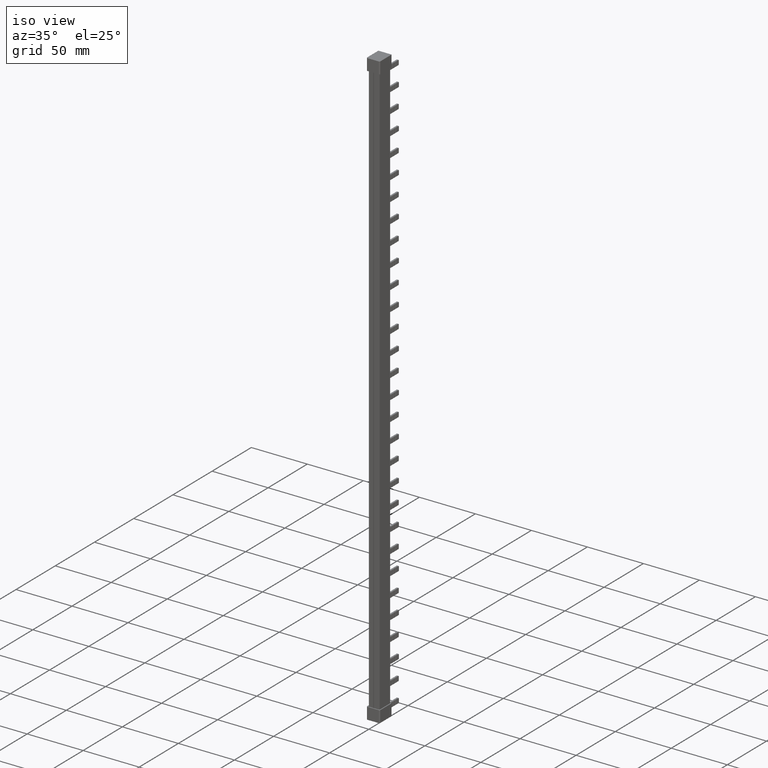
[diagram: clean part render]
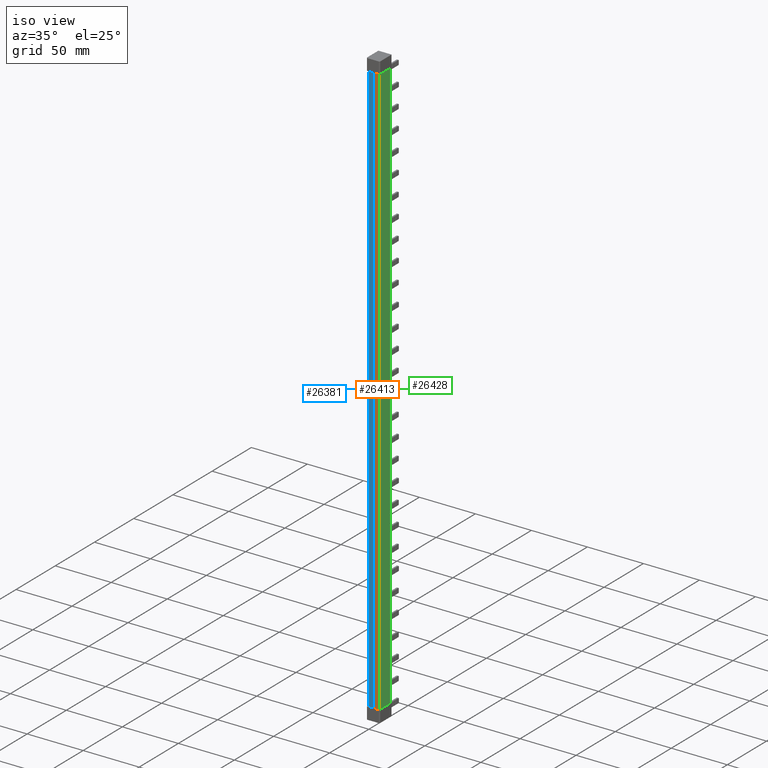
[diagram: same view with three faces highlighted in distinct colors, each labeled with its STEP entity id]
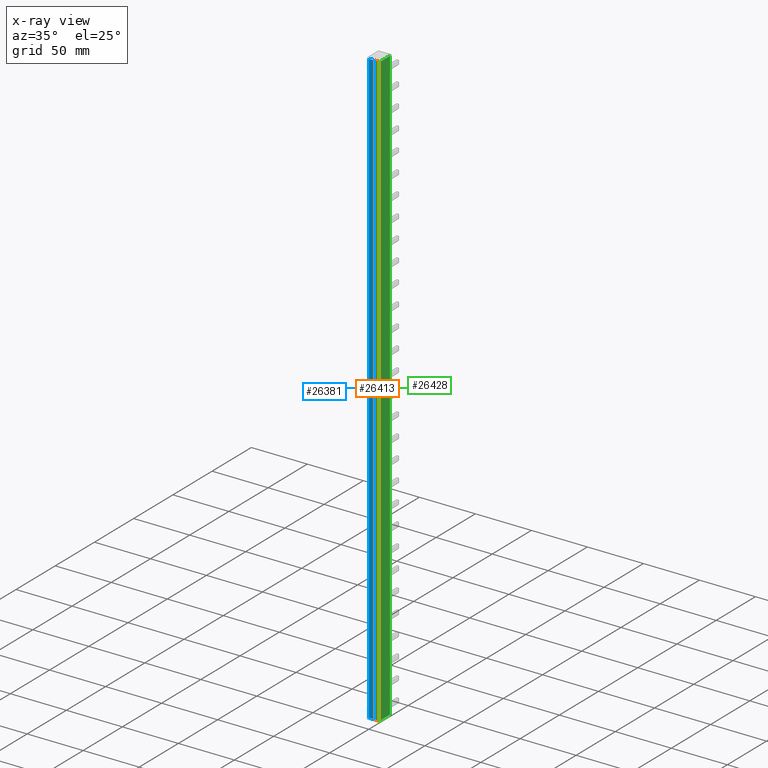
[diagram: x-ray of the same camera — body ghosted, the three highlighted faces saturated]
A machine part, iso view with three faces highlighted in distinct colors.
The next image is the same camera in x-ray (body ghosted, the three faces saturated) — at least one of them is partly hidden behind the body in this view.
Their STEP definitions:

[orange] entity #26413 — the highlighted planar face has unit normal (0, -1, 0).
#4315 = CARTESIAN_POINT ( 'NONE',  ( 8.900000000277932700, -5.421010862427522200E-017, 217.7999999999938400 ) ) ;
#4369 = DIRECTION ( 'NONE',  ( -1.000000000000000000, -0.0000000000000000000, 6.924738560343257600E-013 ) ) ;
#4406 = LINE ( 'NONE', #4315, #39072 ) ;
#5725 = EDGE_LOOP ( 'NONE', ( #30264, #30232, #30269, #30270, #30231, #30259 ) ) ;
#6493 = EDGE_CURVE ( 'NONE', #26765, #26800, #4406, .T. ) ;
#6574 = EDGE_CURVE ( 'NONE', #26796, #26765, #28655, .T. ) ;
#6591 = EDGE_CURVE ( 'NONE', #26823, #26810, #39503, .T. ) ;
#6604 = EDGE_CURVE ( 'NONE', #26810, #26831, #28645, .T. ) ;
#6655 = EDGE_CURVE ( 'NONE', #26831, #26796, #39757, .T. ) ;
#6680 = EDGE_CURVE ( 'NONE', #26800, #26823, #39857, .T. ) ;
#9617 = PLANE ( 'NONE',  #22924 ) ;
#9618 = CARTESIAN_POINT ( 'NONE',  ( 6.099999999999830900, 0.0000000000000000000, 220.2000000000000200 ) ) ;
#9647 = DIRECTION ( 'NONE',  ( 0.0000000000000000000, -0.0000000000000000000, -1.000000000000000000 ) ) ;
#9652 = FACE_OUTER_BOUND ( 'NONE', #5725, .T. ) ;
#9659 = DIRECTION ( 'NONE',  ( 0.0000000000000000000, -1.000000000000000000, 0.0000000000000000000 ) ) ;
#10403 = CARTESIAN_POINT ( 'NONE',  ( 9.592820323301547000, -2.710505431213761100E-017, 217.7999999999933600 ) ) ;
#10407 = CARTESIAN_POINT ( 'NONE',  ( 9.599999999999830900, -3.499844738719437500E-014, 217.7999030758346100 ) ) ;
#10414 = CARTESIAN_POINT ( 'NONE',  ( 5.599999999999383200, -1.807003620809174000E-017, 217.7999999999960900 ) ) ;
#10502 = CARTESIAN_POINT ( 'NONE',  ( 9.599999999999830900, -2.433850994417244300E-014, -313.7999030758379600 ) ) ;
#10519 = CARTESIAN_POINT ( 'NONE',  ( 9.592820322935621000, 1.897353801849632800E-016, -313.8000000000067200 ) ) ;
#10522 = CARTESIAN_POINT ( 'NONE',  ( 5.599999999999383200, 0.0000000000000000000, -313.8000000000039900 ) ) ;
#22924 = AXIS2_PLACEMENT_3D ( 'NONE', #9618, #9659, #9647 ) ;
#26413 = ADVANCED_FACE ( 'NONE', ( #9652 ), #9617, .T. ) ;
#26765 = VERTEX_POINT ( 'NONE', #10403 ) ;
#26796 = VERTEX_POINT ( 'NONE', #10407 ) ;
#26800 = VERTEX_POINT ( 'NONE', #10414 ) ;
#26810 = VERTEX_POINT ( 'NONE', #10519 ) ;
#26823 = VERTEX_POINT ( 'NONE', #10522 ) ;
#26831 = VERTEX_POINT ( 'NONE', #10502 ) ;
#28645 = B_SPLINE_CURVE_WITH_KNOTS ( 'NONE', 3,
 ( #39551, #39570, #39559, #39552 ),
 .UNSPECIFIED., .F., .F.,
 ( 4, 4 ),
 ( 1.387778780781445700E-017, 7.180331262596996200E-006 ),
 .UNSPECIFIED. ) ;
#28655 = B_SPLINE_CURVE_WITH_KNOTS ( 'NONE', 3,
 ( #39419, #39390, #39399, #39427 ),
 .UNSPECIFIED., .F., .F.,
 ( 4, 4 ),
 ( 8.153200337090993300E-017, 7.180330896664818300E-006 ),
 .UNSPECIFIED. ) ;
#30231 = ORIENTED_EDGE ( 'NONE', *, *, #6591, .T. ) ;
#30232 = ORIENTED_EDGE ( 'NONE', *, *, #6574, .T. ) ;
#30259 = ORIENTED_EDGE ( 'NONE', *, *, #6604, .T. ) ;
#30264 = ORIENTED_EDGE ( 'NONE', *, *, #6655, .T. ) ;
#30269 = ORIENTED_EDGE ( 'NONE', *, *, #6493, .T. ) ;
#30270 = ORIENTED_EDGE ( 'NONE', *, *, #6680, .T. ) ;
#38128 = VECTOR ( 'NONE', #39855, 1000.000000000000000 ) ;
#39072 = VECTOR ( 'NONE', #4369, 1000.000000000000000 ) ;
#39159 = VECTOR ( 'NONE', #39521, 1000.000000000000000 ) ;
#39213 = VECTOR ( 'NONE', #39767, 1000.000000000000000 ) ;
#39390 = CARTESIAN_POINT ( 'NONE',  ( 9.597607430918472500, 0.0000000000000000000, 217.7999677721822100 ) ) ;
#39399 = CARTESIAN_POINT ( 'NONE',  ( 9.595213766931163200, 0.0000000000000000000, 217.7999999999934500 ) ) ;
#39419 = CARTESIAN_POINT ( 'NONE',  ( 9.599999999999830900, -3.499844738719437500E-014, 217.7999030758346100 ) ) ;
#39427 = CARTESIAN_POINT ( 'NONE',  ( 9.592820323301547000, -2.710505431213761100E-017, 217.7999999999933600 ) ) ;
#39498 = CARTESIAN_POINT ( 'NONE',  ( 8.899999999908150300, 0.0000000000000000000, -313.8000000000062100 ) ) ;
#39503 = LINE ( 'NONE', #39498, #39159 ) ;
#39521 = DIRECTION ( 'NONE',  ( 1.000000000000000000, -0.0000000000000000000, -6.924738560343257600E-013 ) ) ;
#39551 = CARTESIAN_POINT ( 'NONE',  ( 9.592820322935621000, 1.897353801849632800E-016, -313.8000000000067200 ) ) ;
#39552 = CARTESIAN_POINT ( 'NONE',  ( 9.599999999999830900, -2.433850994417244300E-014, -313.7999030758379600 ) ) ;
#39559 = CARTESIAN_POINT ( 'NONE',  ( 9.597607430797934200, 0.0000000000000000000, -313.7999677721922500 ) ) ;
#39570 = CARTESIAN_POINT ( 'NONE',  ( 9.595213766689875400, 0.0000000000000000000, -313.8000000000067200 ) ) ;
#39757 = LINE ( 'NONE', #39781, #39213 ) ;
#39767 = DIRECTION ( 'NONE',  ( -0.0000000000000000000, 0.0000000000000000000, 1.000000000000000000 ) ) ;
#39781 = CARTESIAN_POINT ( 'NONE',  ( 9.599999999999830900, 0.0000000000000000000, 220.2000000000000200 ) ) ;
#39854 = CARTESIAN_POINT ( 'NONE',  ( 5.599999999999383200, 0.0000000000000000000, 220.2000000000000200 ) ) ;
#39855 = DIRECTION ( 'NONE',  ( 0.0000000000000000000, -0.0000000000000000000, -1.000000000000000000 ) ) ;
#39857 = LINE ( 'NONE', #39854, #38128 ) ;

[blue] entity #26381 — the highlighted planar face has unit normal (0, 1, 0).
#2601 = CARTESIAN_POINT ( 'NONE',  ( 0.0000000000000000000, -3.275151432143953700E-012, 217.7999030755639800 ) ) ;
#2625 = CARTESIAN_POINT ( 'NONE',  ( 0.004786233431959560100, 0.0000000000000000000, 217.7999999999999800 ) ) ;
#2632 = CARTESIAN_POINT ( 'NONE',  ( 0.007179677250573329200, 6.044427111606687200E-015, 217.7999999999999800 ) ) ;
#2638 = CARTESIAN_POINT ( 'NONE',  ( 0.002392569259452299300, 0.0000000000000000000, 217.7999677721837200 ) ) ;
#4001 = LINE ( 'NONE', #4045, #39048 ) ;
#4045 = CARTESIAN_POINT ( 'NONE',  ( 0.0000000000000000000, 0.0000000000000000000, 217.7999999999999800 ) ) ;
#4047 = DIRECTION ( 'NONE',  ( 1.000000000000000000, 0.0000000000000000000, -0.0000000000000000000 ) ) ;
#5635 = EDGE_LOOP ( 'NONE', ( #30319, #30250, #30285, #30234, #30294, #30312 ) ) ;
#6456 = EDGE_CURVE ( 'NONE', #26783, #26751, #4001, .T. ) ;
#6532 = EDGE_CURVE ( 'NONE', #26783, #26762, #28650, .T. ) ;
#6547 = EDGE_CURVE ( 'NONE', #26836, #26862, #39352, .T. ) ;
#6602 = EDGE_CURVE ( 'NONE', #26808, #26862, #28656, .T. ) ;
#6658 = EDGE_CURVE ( 'NONE', #26762, #26808, #39771, .T. ) ;
#6679 = EDGE_CURVE ( 'NONE', #26751, #26836, #39845, .T. ) ;
#9457 = PLANE ( 'NONE',  #22902 ) ;
#9463 = CARTESIAN_POINT ( 'NONE',  ( 0.0000000000000000000, 0.0000000000000000000, 220.2000000000000200 ) ) ;
#9471 = DIRECTION ( 'NONE',  ( 0.0000000000000000000, -0.0000000000000000000, 1.000000000000000000 ) ) ;
#9481 = FACE_OUTER_BOUND ( 'NONE', #5635, .T. ) ;
#9488 = DIRECTION ( 'NONE',  ( 0.0000000000000000000, 1.000000000000000000, 0.0000000000000000000 ) ) ;
#10434 = CARTESIAN_POINT ( 'NONE',  ( 4.000000000000447600, 0.0000000000000000000, 217.7999999999999800 ) ) ;
#10437 = CARTESIAN_POINT ( 'NONE',  ( 0.0000000000000000000, -3.275151432143953700E-012, 217.7999030755639800 ) ) ;
#10460 = CARTESIAN_POINT ( 'NONE',  ( 0.007179677250573329200, 6.044427111606687200E-015, 217.7999999999999800 ) ) ;
#10484 = CARTESIAN_POINT ( 'NONE',  ( 0.007179676935977309800, -1.794354595463509800E-014, -313.8000000000001800 ) ) ;
#10489 = CARTESIAN_POINT ( 'NONE',  ( -8.724474723982679100E-009, -5.056718932472392700E-013, -313.7999030745502900 ) ) ;
#10516 = CARTESIAN_POINT ( 'NONE',  ( 4.000000000000447600, 0.0000000000000000000, -313.8000000000027400 ) ) ;
#22902 = AXIS2_PLACEMENT_3D ( 'NONE', #9463, #9488, #9471 ) ;
#26381 = ADVANCED_FACE ( 'NONE', ( #9481 ), #9457, .F. ) ;
#26751 = VERTEX_POINT ( 'NONE', #10434 ) ;
#26762 = VERTEX_POINT ( 'NONE', #10437 ) ;
#26783 = VERTEX_POINT ( 'NONE', #10460 ) ;
#26808 = VERTEX_POINT ( 'NONE', #10489 ) ;
#26836 = VERTEX_POINT ( 'NONE', #10516 ) ;
#26862 = VERTEX_POINT ( 'NONE', #10484 ) ;
#28650 = B_SPLINE_CURVE_WITH_KNOTS ( 'NONE', 3,
 ( #2632, #2625, #2638, #2601 ),
 .UNSPECIFIED., .F., .F.,
 ( 4, 4 ),
 ( 5.782439821020932100E-017, 7.180331452622753700E-006 ),
 .UNSPECIFIED. ) ;
#28656 = B_SPLINE_CURVE_WITH_KNOTS ( 'NONE', 3,
 ( #39538, #39550, #39535, #39553 ),
 .UNSPECIFIED., .F., .F.,
 ( 4, 4 ),
 ( 8.708922910590086500E-012, 7.180348584286138500E-006 ),
 .UNSPECIFIED. ) ;
#30234 = ORIENTED_EDGE ( 'NONE', *, *, #6658, .T. ) ;
#30250 = ORIENTED_EDGE ( 'NONE', *, *, #6456, .F. ) ;
#30285 = ORIENTED_EDGE ( 'NONE', *, *, #6532, .T. ) ;
#30294 = ORIENTED_EDGE ( 'NONE', *, *, #6602, .T. ) ;
#30312 = ORIENTED_EDGE ( 'NONE', *, *, #6547, .F. ) ;
#30319 = ORIENTED_EDGE ( 'NONE', *, *, #6679, .F. ) ;
#38144 = VECTOR ( 'NONE', #39839, 1000.000000000000000 ) ;
#39048 = VECTOR ( 'NONE', #4047, 1000.000000000000000 ) ;
#39118 = VECTOR ( 'NONE', #39365, 1000.000000000000000 ) ;
#39232 = VECTOR ( 'NONE', #39803, 1000.000000000000000 ) ;
#39352 = LINE ( 'NONE', #39355, #39118 ) ;
#39355 = CARTESIAN_POINT ( 'NONE',  ( 0.0000000000000000000, 0.0000000000000000000, -313.8000000000027400 ) ) ;
#39365 = DIRECTION ( 'NONE',  ( -1.000000000000000000, -0.0000000000000000000, 0.0000000000000000000 ) ) ;
#39535 = CARTESIAN_POINT ( 'NONE',  ( 0.004786227418292725600, 0.0000000000000000000, -313.8000000000008100 ) ) ;
#39538 = CARTESIAN_POINT ( 'NONE',  ( -8.724474723982679100E-009, -5.056718932472392700E-013, -313.7999030745502900 ) ) ;
#39550 = CARTESIAN_POINT ( 'NONE',  ( 0.002392557533355479600, 2.825915264665640600E-010, -313.7999677717516000 ) ) ;
#39553 = CARTESIAN_POINT ( 'NONE',  ( 0.007179676935977309800, -1.794354595463509800E-014, -313.8000000000001800 ) ) ;
#39771 = LINE ( 'NONE', #39784, #39232 ) ;
#39784 = CARTESIAN_POINT ( 'NONE',  ( 0.0000000000000000000, -1.011343786494478500E-012, 220.2000000000000200 ) ) ;
#39803 = DIRECTION ( 'NONE',  ( 0.0000000000000000000, 0.0000000000000000000, -1.000000000000000000 ) ) ;
#39839 = DIRECTION ( 'NONE',  ( -0.0000000000000000000, 0.0000000000000000000, -1.000000000000000000 ) ) ;
#39845 = LINE ( 'NONE', #39860, #38144 ) ;
#39860 = CARTESIAN_POINT ( 'NONE',  ( 4.000000000000447600, 0.0000000000000000000, 220.2000000000000200 ) ) ;

[green] entity #26428 — the highlighted planar face has unit normal (1, -0, 0).
#4093 = CARTESIAN_POINT ( 'NONE',  ( 9.599999999999830900, 0.01270166524994384400, 217.7999999999955800 ) ) ;
#4102 = CARTESIAN_POINT ( 'NONE',  ( 9.599999999999830900, 0.004233506285764120400, 217.7999684908484700 ) ) ;
#4114 = CARTESIAN_POINT ( 'NONE',  ( 9.599999999999830900, 0.0000000000000000000, 217.7999999999977700 ) ) ;
#4124 = DIRECTION ( 'NONE',  ( -0.0000000000000000000, -1.000000000000000000, -0.0000000000000000000 ) ) ;
#4162 = CARTESIAN_POINT ( 'NONE',  ( 9.599999999999830900, 0.008467653486513175600, 217.7999999999946100 ) ) ;
#4185 = CARTESIAN_POINT ( 'NONE',  ( 9.599999999999830900, -3.499844738719437500E-014, 217.7999030758346100 ) ) ;
#4187 = LINE ( 'NONE', #4114, #39055 ) ;
#5730 = EDGE_LOOP ( 'NONE', ( #30309, #30335, #30287, #30329, #30261, #30241 ) ) ;
#6464 = EDGE_CURVE ( 'NONE', #26756, #26796, #28662, .T. ) ;
#6474 = EDGE_CURVE ( 'NONE', #26772, #26756, #4187, .T. ) ;
#6553 = EDGE_CURVE ( 'NONE', #26831, #26838, #28644, .T. ) ;
#6655 = EDGE_CURVE ( 'NONE', #26831, #26796, #39757, .T. ) ;
#6657 = EDGE_CURVE ( 'NONE', #26819, #26772, #39746, .T. ) ;
#6670 = EDGE_CURVE ( 'NONE', #26838, #26819, #39828, .T. ) ;
#9737 = FACE_OUTER_BOUND ( 'NONE', #5730, .T. ) ;
#9743 = DIRECTION ( 'NONE',  ( 0.0000000000000000000, 0.0000000000000000000, -1.000000000000000000 ) ) ;
#9750 = CARTESIAN_POINT ( 'NONE',  ( 9.599999999999830900, 0.0000000000000000000, -208.7999999999999800 ) ) ;
#9753 = PLANE ( 'NONE',  #23004 ) ;
#9756 = DIRECTION ( 'NONE',  ( 1.000000000000000000, -0.0000000000000000000, 0.0000000000000000000 ) ) ;
#10407 = CARTESIAN_POINT ( 'NONE',  ( 9.599999999999830900, -3.499844738719437500E-014, 217.7999030758346100 ) ) ;
#10435 = CARTESIAN_POINT ( 'NONE',  ( 9.599999999999830900, 0.01270166524994384400, 217.7999999999955800 ) ) ;
#10440 = CARTESIAN_POINT ( 'NONE',  ( 9.599999999999830900, 13.49999999999998400, 217.7999999999977700 ) ) ;
#10476 = CARTESIAN_POINT ( 'NONE',  ( 9.599999999999830900, 0.01270166554500681800, -313.8000000000067800 ) ) ;
#10500 = CARTESIAN_POINT ( 'NONE',  ( 9.599999999999830900, 13.49999999999998400, -313.8000000000064900 ) ) ;
#10502 = CARTESIAN_POINT ( 'NONE',  ( 9.599999999999830900, -2.433850994417244300E-014, -313.7999030758379600 ) ) ;
#23004 = AXIS2_PLACEMENT_3D ( 'NONE', #9750, #9756, #9743 ) ;
#26428 = ADVANCED_FACE ( 'NONE', ( #9737 ), #9753, .T. ) ;
#26756 = VERTEX_POINT ( 'NONE', #10435 ) ;
#26772 = VERTEX_POINT ( 'NONE', #10440 ) ;
#26796 = VERTEX_POINT ( 'NONE', #10407 ) ;
#26819 = VERTEX_POINT ( 'NONE', #10500 ) ;
#26831 = VERTEX_POINT ( 'NONE', #10502 ) ;
#26838 = VERTEX_POINT ( 'NONE', #10476 ) ;
#28644 = B_SPLINE_CURVE_WITH_KNOTS ( 'NONE', 3,
 ( #39360, #39382, #39371, #39383 ),
 .UNSPECIFIED., .F., .F.,
 ( 4, 4 ),
 ( 2.353966821341561700E-017, 1.270203534528771300E-005 ),
 .UNSPECIFIED. ) ;
#28662 = B_SPLINE_CURVE_WITH_KNOTS ( 'NONE', 3,
 ( #4093, #4162, #4102, #4185 ),
 .UNSPECIFIED., .F., .F.,
 ( 4, 4 ),
 ( 1.200684623299130900E-013, 1.270203493009183700E-005 ),
 .UNSPECIFIED. ) ;
#30241 = ORIENTED_EDGE ( 'NONE', *, *, #6670, .T. ) ;
#30261 = ORIENTED_EDGE ( 'NONE', *, *, #6553, .T. ) ;
#30287 = ORIENTED_EDGE ( 'NONE', *, *, #6464, .T. ) ;
#30309 = ORIENTED_EDGE ( 'NONE', *, *, #6657, .T. ) ;
#30329 = ORIENTED_EDGE ( 'NONE', *, *, #6655, .F. ) ;
#30335 = ORIENTED_EDGE ( 'NONE', *, *, #6474, .T. ) ;
#38127 = VECTOR ( 'NONE', #39782, 1000.000000000000000 ) ;
#39055 = VECTOR ( 'NONE', #4124, 1000.000000000000000 ) ;
#39213 = VECTOR ( 'NONE', #39767, 1000.000000000000000 ) ;
#39260 = VECTOR ( 'NONE', #39758, 1000.000000000000000 ) ;
#39360 = CARTESIAN_POINT ( 'NONE',  ( 9.599999999999830900, -2.433850994417244300E-014, -313.7999030758379600 ) ) ;
#39371 = CARTESIAN_POINT ( 'NONE',  ( 9.599999999999830900, 0.008467653763219904300, -313.8000000000067800 ) ) ;
#39382 = CARTESIAN_POINT ( 'NONE',  ( 9.599999999999830900, 0.004233506424092168200, -313.7999684908574000 ) ) ;
#39383 = CARTESIAN_POINT ( 'NONE',  ( 9.599999999999830900, 0.01270166554500681800, -313.8000000000067800 ) ) ;
#39746 = LINE ( 'NONE', #39756, #39260 ) ;
#39756 = CARTESIAN_POINT ( 'NONE',  ( 9.599999999999830900, 13.49999999999998400, -208.7999999999999800 ) ) ;
#39757 = LINE ( 'NONE', #39781, #39213 ) ;
#39758 = DIRECTION ( 'NONE',  ( -0.0000000000000000000, -0.0000000000000000000, 1.000000000000000000 ) ) ;
#39767 = DIRECTION ( 'NONE',  ( -0.0000000000000000000, 0.0000000000000000000, 1.000000000000000000 ) ) ;
#39781 = CARTESIAN_POINT ( 'NONE',  ( 9.599999999999830900, 0.0000000000000000000, 220.2000000000000200 ) ) ;
#39782 = DIRECTION ( 'NONE',  ( 0.0000000000000000000, 1.000000000000000000, 0.0000000000000000000 ) ) ;
#39813 = CARTESIAN_POINT ( 'NONE',  ( 9.599999999999830900, 0.0000000000000000000, -313.8000000000067200 ) ) ;
#39828 = LINE ( 'NONE', #39813, #38127 ) ;